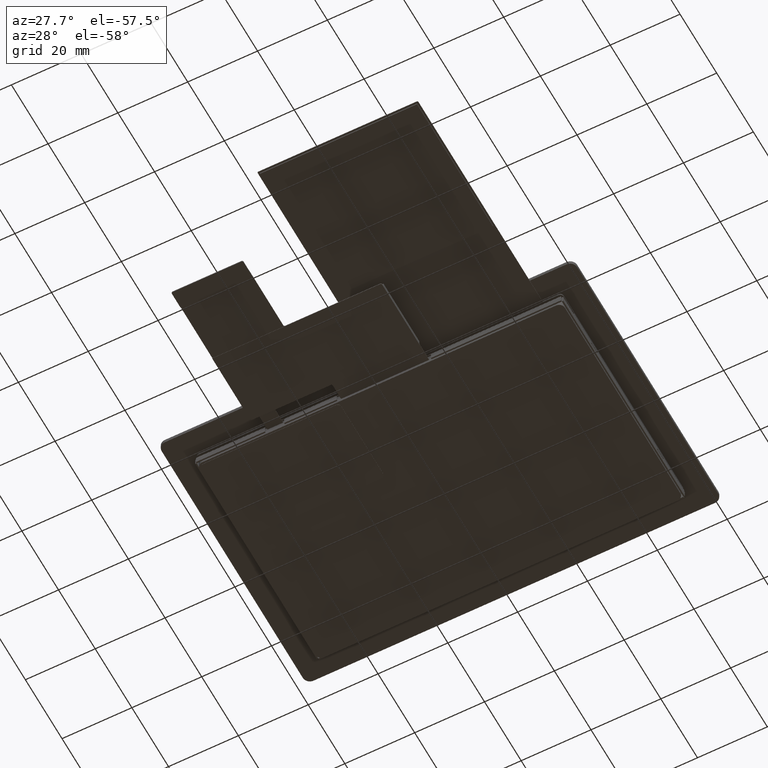
[diagram: clean part render]
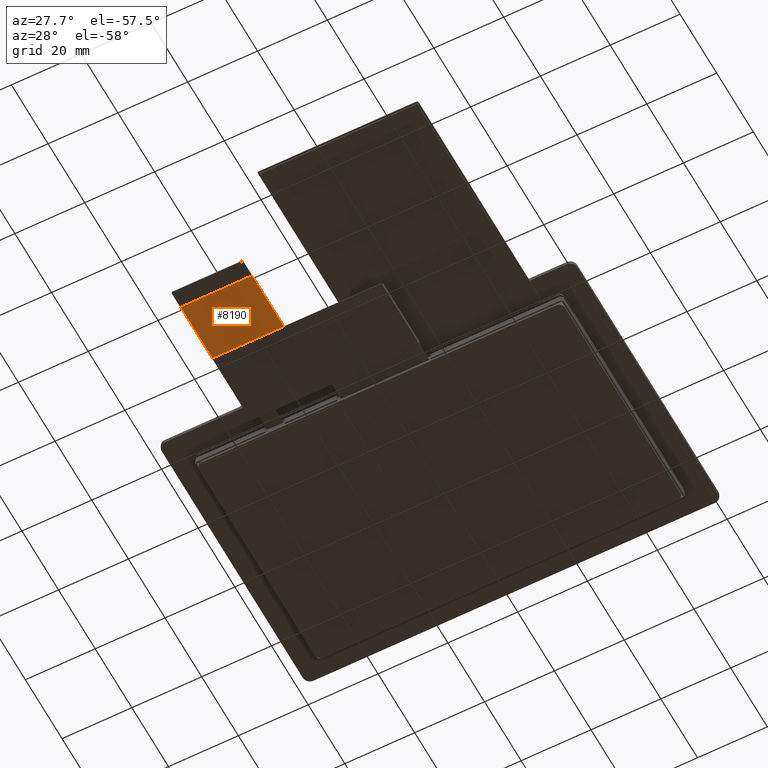
[diagram: same view with one face highlighted and labeled with its STEP entity id]
A machine part, auxiliary view. The second image highlights one B-rep face of the part: STEP entity #8190.
In plain terms, the highlighted planar face has unit normal (0, 0, 1).
Its self-contained STEP definition (entity closure, byte-faithful):
#320=PLANE('',#8679);
#709=FACE_OUTER_BOUND('',#1145,.T.);
#1145=EDGE_LOOP('',(#7020,#7021,#7022,#7023,#7024));
#2054=LINE('',#12506,#3132);
#2057=LINE('',#12512,#3135);
#2061=LINE('',#12522,#3139);
#2062=LINE('',#12525,#3140);
#3132=VECTOR('',#10206,22.05);
#3135=VECTOR('',#10211,10.);
#3139=VECTOR('',#10221,20.9);
#3140=VECTOR('',#10224,21.65);
#3518=CIRCLE('',#8680,0.4);
#4080=VERTEX_POINT('',#12503);
#4081=VERTEX_POINT('',#12505);
#4083=VERTEX_POINT('',#12511);
#4086=VERTEX_POINT('',#12521);
#4087=VERTEX_POINT('',#12523);
#5098=EDGE_CURVE('',#4080,#4081,#2054,.T.);
#5101=EDGE_CURVE('',#4083,#4081,#2057,.T.);
#5106=EDGE_CURVE('',#4080,#4086,#2061,.T.);
#5107=EDGE_CURVE('',#4086,#4087,#3518,.T.);
#5108=EDGE_CURVE('',#4083,#4087,#2062,.T.);
#7020=ORIENTED_EDGE('',*,*,#5101,.T.);
#7021=ORIENTED_EDGE('',*,*,#5098,.F.);
#7022=ORIENTED_EDGE('',*,*,#5106,.T.);
#7023=ORIENTED_EDGE('',*,*,#5107,.T.);
#7024=ORIENTED_EDGE('',*,*,#5108,.F.);
#8190=ADVANCED_FACE('',(#709),#320,.F.);
#8679=AXIS2_PLACEMENT_3D('',#12520,#10219,#10220);
#8680=AXIS2_PLACEMENT_3D('',#12524,#10222,#10223);
#10206=DIRECTION('',(8.65815638633699E-16,-1.,0.));
#10211=DIRECTION('',(-1.,-8.65815638633699E-16,0.));
#10219=DIRECTION('center_axis',(0.,0.,1.));
#10220=DIRECTION('ref_axis',(1.,8.65815638633699E-16,0.));
#10221=DIRECTION('',(1.,8.65815638633699E-16,0.));
#10222=DIRECTION('center_axis',(0.,0.,1.));
#10223=DIRECTION('ref_axis',(-8.65815638633699E-16,1.,0.));
#10224=DIRECTION('',(-8.65815638633699E-16,1.,0.));
#12503=CARTESIAN_POINT('',(-34.1900000000015,-61.4219999997519,-4.23999999999999));
#12505=CARTESIAN_POINT('',(-34.1900000000015,-78.871999999749,-4.23999999999999));
#12506=CARTESIAN_POINT('',(-34.1900000000015,-61.4219999997519,-4.23999999999999));
#12511=CARTESIAN_POINT('',(-13.6900000000017,-78.871999999749,-4.23999999999999));
#12512=CARTESIAN_POINT('',(-22.5950000000014,-78.8719999997491,-4.23999999999999));
#12520=CARTESIAN_POINT('Origin',(-11.0000000000016,-52.6707898479989,-4.23999999999999));
#12521=CARTESIAN_POINT('',(-13.2900000000018,-61.4219999997519,-4.23999999999999));
#12522=CARTESIAN_POINT('',(-34.1900000000015,-61.4219999997519,-4.23999999999999));
#12523=CARTESIAN_POINT('',(-13.6900000000017,-61.821999999752,-4.23999999999999));
#12524=CARTESIAN_POINT('Origin',(-13.2900000000018,-61.821999999752,-4.23999999999999));
#12525=CARTESIAN_POINT('',(-13.6900000000014,-83.4719999997489,-4.23999999999999));